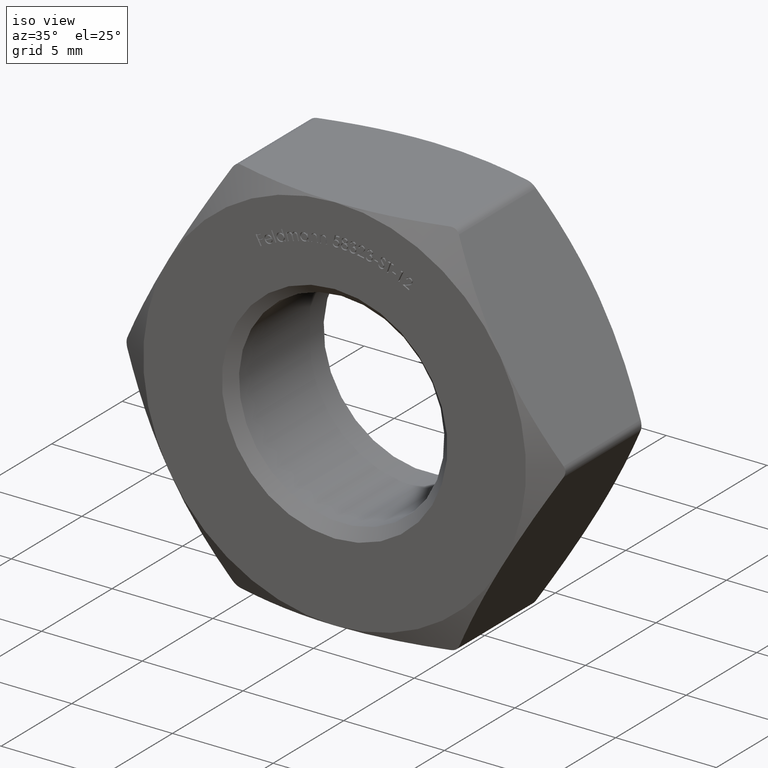
[diagram: clean part render]
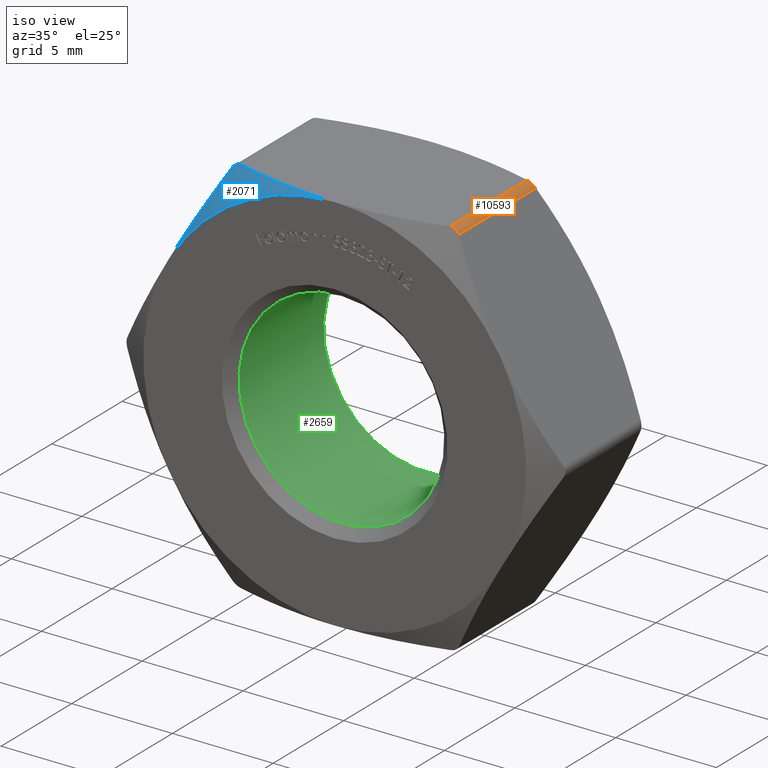
[diagram: same view with three faces highlighted in distinct colors, each labeled with its STEP entity id]
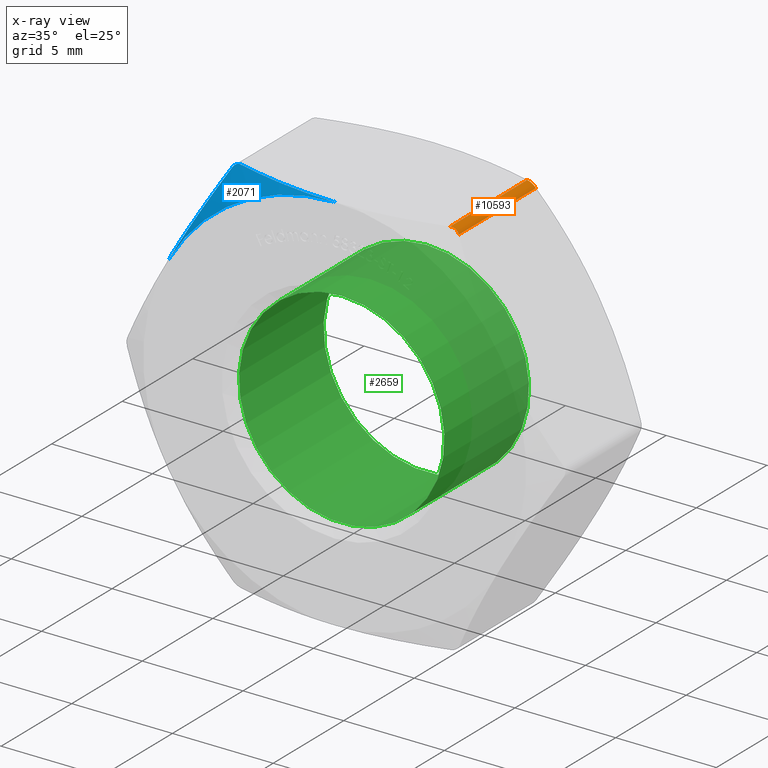
[diagram: x-ray of the same camera — body ghosted, the three highlighted faces saturated]
A machine part, iso view with three faces highlighted in distinct colors.
The next image is the same camera in x-ray (body ghosted, the three faces saturated) — at least one of them is partly hidden behind the body in this view.
Their STEP definitions:

[orange] entity #10593 — the highlighted cylindrical surface (edge-blend (fillet) strip) has radius 0.5 mm, axis along (0, -1, 0).
#35 = DIRECTION ( 'NONE',  ( -0.000000000000000000, 1.000000000000000000, -0.000000000000000000 ) ) ;
#202 = CARTESIAN_POINT ( 'NONE',  ( 5.196152422706628471, -2.733161112797773296, 9.500000000000001776 ) ) ;
#394 = CARTESIAN_POINT ( 'NONE',  ( 5.369432392635906659, 2.696196110277425451, 9.477215452927385542 ) ) ;
#900 = CARTESIAN_POINT ( 'NONE',  ( 5.370289189535662366, -2.696108957237654202, 9.476903473388148313 ) ) ;
#1115 = CARTESIAN_POINT ( 'NONE',  ( 5.282050604140605898, -2.709362655883581272, 9.500000000000003553 ) ) ;
#1377 = EDGE_CURVE ( 'NONE', #6159, #10678, #9933, .T. ) ;
#1577 = EDGE_CURVE ( 'NONE', #10678, #12468, #2324, .T. ) ;
#1732 = CARTESIAN_POINT ( 'NONE',  ( 5.586216033881776788, 2.709362655883534643, 9.324390007260857871 ) ) ;
#1938 = CARTESIAN_POINT ( 'NONE',  ( 5.629165124598848990, 2.733161112797772407, 9.250000000000001776 ) ) ;
#2324 = LINE ( 'NONE', #4710, #9366 ) ;
#2556 = ORIENTED_EDGE ( 'NONE', *, *, #1577, .F. ) ;
#3938 = CARTESIAN_POINT ( 'NONE',  ( 5.522094562399021633, 2.696108957237604020, 9.389258600501161567 ) ) ;
#4710 = CARTESIAN_POINT ( 'NONE',  ( 5.196152422706629359, 3.500000000000000000, 9.500000000000001776 ) ) ;
#5069 = EDGE_CURVE ( 'NONE', #13404, #6159, #5956, .T. ) ;
#5725 = DIRECTION ( 'NONE',  ( 0.000000000000000000, 0.000000000000000000, -1.000000000000000000 ) ) ;
#5753 = CARTESIAN_POINT ( 'NONE',  ( 5.629165124598350722, -2.733161112797497072, 9.250000000000863309 ) ) ;
#5828 = EDGE_LOOP ( 'NONE', ( #12249, #2556, #6005, #10338 ) ) ;
#5956 = LINE ( 'NONE', #13663, #8933 ) ;
#6005 = ORIENTED_EDGE ( 'NONE', *, *, #1377, .F. ) ;
#6159 = VERTEX_POINT ( 'NONE', #8187 ) ;
#6784 = DIRECTION ( 'NONE',  ( 0.000000000000000000, -1.000000000000000000, 0.000000000000000000 ) ) ;
#8154 = CARTESIAN_POINT ( 'NONE',  ( 5.522793143055056753, -2.696196110277375269, 9.388672582389874677 ) ) ;
#8187 = CARTESIAN_POINT ( 'NONE',  ( 5.629165124598350722, -2.733161112797497072, 9.250000000000863309 ) ) ;
#8933 = VECTOR ( 'NONE', #8947, 1000.000000000000000 ) ;
#8947 = DIRECTION ( 'NONE',  ( 0.000000000000000000, -1.000000000000000000, 0.000000000000000000 ) ) ;
#9366 = VECTOR ( 'NONE', #35, 1000.000000000000000 ) ;
#9511 = B_SPLINE_CURVE_WITH_KNOTS ( 'NONE', 3,
 ( #14808, #11041, #394, #3938, #1732, #10065 ),
 .UNSPECIFIED., .F., .F.,
 ( 4, 2, 4 ),
 ( 8.673617379884035472E-19, 0.0002637781458274811070, 0.0005275562916549613466 ),
 .UNSPECIFIED. ) ;
#9685 = EDGE_CURVE ( 'NONE', #12468, #13404, #9511, .T. ) ;
#9933 = B_SPLINE_CURVE_WITH_KNOTS ( 'NONE', 3,
 ( #5753, #13926, #8154, #900, #1115, #12911 ),
 .UNSPECIFIED., .F., .F.,
 ( 4, 2, 4 ),
 ( 9.650992615314286706E-16, 0.0002637781458279599991, 0.0005275562916549548413 ),
 .UNSPECIFIED. ) ;
#10065 = CARTESIAN_POINT ( 'NONE',  ( 5.629165124598848990, 2.733161112797772407, 9.250000000000001776 ) ) ;
#10338 = ORIENTED_EDGE ( 'NONE', *, *, #5069, .F. ) ;
#10593 = ADVANCED_FACE ( 'NONE', ( #15380 ), #14811, .T. ) ;
#10678 = VERTEX_POINT ( 'NONE', #202 ) ;
#11041 = CARTESIAN_POINT ( 'NONE',  ( 5.282019346759056155, 2.709371315874232078, 9.500000000000000000 ) ) ;
#11581 = CARTESIAN_POINT ( 'NONE',  ( 5.196152422706629359, 3.500000000000000000, 9.000000000000001776 ) ) ;
#11749 = AXIS2_PLACEMENT_3D ( 'NONE', #11581, #6784, #5725 ) ;
#12249 = ORIENTED_EDGE ( 'NONE', *, *, #9685, .F. ) ;
#12468 = VERTEX_POINT ( 'NONE', #14579 ) ;
#12911 = CARTESIAN_POINT ( 'NONE',  ( 5.196152422706628471, -2.733161112797773296, 9.500000000000001776 ) ) ;
#13404 = VERTEX_POINT ( 'NONE', #1938 ) ;
#13663 = CARTESIAN_POINT ( 'NONE',  ( 5.629165124598848990, 3.500000000000000000, 9.250000000000001776 ) ) ;
#13926 = CARTESIAN_POINT ( 'NONE',  ( 5.586231662572711087, -2.709371315873996267, 9.324362937574106169 ) ) ;
#14579 = CARTESIAN_POINT ( 'NONE',  ( 5.196152422706628471, 2.733161112797773296, 9.500000000000001776 ) ) ;
#14808 = CARTESIAN_POINT ( 'NONE',  ( 5.196152422706628471, 2.733161112797773296, 9.500000000000001776 ) ) ;
#14811 = CYLINDRICAL_SURFACE ( 'NONE', #11749, 0.5000000000000004441 ) ;
#15380 = FACE_OUTER_BOUND ( 'NONE', #5828, .T. ) ;

[blue] entity #2071 — the highlighted conical surface has half-angle 60 deg.
#48 = EDGE_CURVE ( 'NONE', #10922, #6748, #7644, .T. ) ;
#284 = FACE_OUTER_BOUND ( 'NONE', #8165, .T. ) ;
#586 = EDGE_CURVE ( 'NONE', #6748, #15026, #1231, .T. ) ;
#1231 = CIRCLE ( 'NONE', #7705, 9.500000000000001776 ) ;
#1423 = DIRECTION ( 'NONE',  ( 0.000000000000000000, 0.000000000000000000, 1.000000000000000000 ) ) ;
#2071 = ADVANCED_FACE ( 'NONE', ( #284 ), #3949, .T. ) ;
#2133 = CARTESIAN_POINT ( 'NONE',  ( -4.348666152671948559, -2.967960792442867923, 9.500000000000001776 ) ) ;
#2533 = VERTEX_POINT ( 'NONE', #11505 ) ;
#2710 = CARTESIAN_POINT ( 'NONE',  ( -7.347778050468204647, -3.412405536657729055, 6.273275093849667527 ) ) ;
#3325 = CARTESIAN_POINT ( 'NONE',  ( -5.196152422707281282, -2.733161112797592551, 9.500000000000001776 ) ) ;
#3915 = CARTESIAN_POINT ( 'NONE',  ( -5.196152422707281282, -2.733161112797592551, 9.500000000000001776 ) ) ;
#3929 = B_SPLINE_CURVE_WITH_KNOTS ( 'NONE', 3,
 ( #14801, #11145, #10006, #2710, #4308, #7829, #5387, #13701 ),
 .UNSPECIFIED., .F., .F.,
 ( 4, 2, 2, 4 ),
 ( 0.005549985383765654139, 0.006857997360578058955, 0.008166009337390464640, 0.01078203329101527427 ),
 .UNSPECIFIED. ) ;
#3949 = CONICAL_SURFACE ( 'NONE', #5541, 9.500000000000001776, 1.047197551196604071 ) ;
#3966 = CARTESIAN_POINT ( 'NONE',  ( -5.369432392636323215, -2.696196110277392588, 9.477215452927211459 ) ) ;
#4308 = CARTESIAN_POINT ( 'NONE',  ( -7.130196065325849375, -3.360768812073043232, 6.650138146927925931 ) ) ;
#4663 = EDGE_CURVE ( 'NONE', #10922, #2533, #13479, .T. ) ;
#5092 = CARTESIAN_POINT ( 'NONE',  ( -5.586216033881830079, -2.709362655883565285, 9.324390007260763724 ) ) ;
#5387 = CARTESIAN_POINT ( 'NONE',  ( -6.053412761787224206, -2.968240341392042403, 8.515181537398682110 ) ) ;
#5541 = AXIS2_PLACEMENT_3D ( 'NONE', #6411, #7559, #13601 ) ;
#5591 = CARTESIAN_POINT ( 'NONE',  ( -1.748548221912492373, -3.428786257910811486, 9.500000000000000000 ) ) ;
#5645 = CARTESIAN_POINT ( 'NONE',  ( 3.931690912932538010E-17, -3.500000000000000000, 9.500000000000001776 ) ) ;
#5969 = CARTESIAN_POINT ( 'NONE',  ( 3.931690912932538010E-17, -3.500000000000000000, 1.848398285660946747E-16 ) ) ;
#6411 = CARTESIAN_POINT ( 'NONE',  ( 3.931690912932538010E-17, -3.500000000000000000, 0.000000000000000000 ) ) ;
#6748 = VERTEX_POINT ( 'NONE', #7870 ) ;
#7295 = DIRECTION ( 'NONE',  ( -0.000000000000000000, -1.000000000000000000, -0.000000000000000000 ) ) ;
#7559 = DIRECTION ( 'NONE',  ( -1.123340260837868025E-17, 1.000000000000000000, -0.000000000000000000 ) ) ;
#7644 = B_SPLINE_CURVE_WITH_KNOTS ( 'NONE', 3,
 ( #3325, #2133, #15008, #5591, #15108, #5645 ),
 .UNSPECIFIED., .F., .F.,
 ( 4, 2, 4 ),
 ( 0.01008431317107068119, 0.01270932973017897469, 0.01533434628928726819 ),
 .UNSPECIFIED. ) ;
#7705 = AXIS2_PLACEMENT_3D ( 'NONE', #5969, #7295, #1423 ) ;
#7829 = CARTESIAN_POINT ( 'NONE',  ( -6.481161992788940118, -3.161040693212942010, 7.774298136405198179 ) ) ;
#7870 = CARTESIAN_POINT ( 'NONE',  ( 3.931690912932538010E-17, -3.500000000000000000, 9.500000000000001776 ) ) ;
#7878 = ORIENTED_EDGE ( 'NONE', *, *, #4663, .T. ) ;
#8165 = EDGE_LOOP ( 'NONE', ( #14469, #7878, #15081, #13101 ) ) ;
#8692 = CARTESIAN_POINT ( 'NONE',  ( -5.522094562399192164, -2.696108957237635995, 9.389258600500994589 ) ) ;
#9987 = CARTESIAN_POINT ( 'NONE',  ( -5.629165124598848990, -2.733161112797774184, 9.250000000000000000 ) ) ;
#10006 = CARTESIAN_POINT ( 'NONE',  ( -7.785726958241923512, -3.482053147081709099, 5.514725334466293205 ) ) ;
#10814 = EDGE_CURVE ( 'NONE', #15026, #2533, #3929, .T. ) ;
#10922 = VERTEX_POINT ( 'NONE', #11616 ) ;
#11145 = CARTESIAN_POINT ( 'NONE',  ( -8.007001594286082380, -3.500000000000008438, 5.131466422411502748 ) ) ;
#11505 = CARTESIAN_POINT ( 'NONE',  ( -5.629165124598848990, -2.733161112797774184, 9.250000000000000000 ) ) ;
#11616 = CARTESIAN_POINT ( 'NONE',  ( -5.196152422707281282, -2.733161112797592551, 9.500000000000001776 ) ) ;
#13101 = ORIENTED_EDGE ( 'NONE', *, *, #586, .F. ) ;
#13479 = B_SPLINE_CURVE_WITH_KNOTS ( 'NONE', 3,
 ( #3915, #14783, #3966, #8692, #5092, #9987 ),
 .UNSPECIFIED., .F., .F.,
 ( 4, 2, 4 ),
 ( 6.327872022629089242E-16, 0.0002637781458277957424, 0.0005275562916549586361 ),
 .UNSPECIFIED. ) ;
#13601 = DIRECTION ( 'NONE',  ( 1.000000000000000000, 0.000000000000000000, 0.000000000000000000 ) ) ;
#13701 = CARTESIAN_POINT ( 'NONE',  ( -5.629165124598848990, -2.733161112797774184, 9.250000000000000000 ) ) ;
#13904 = CARTESIAN_POINT ( 'NONE',  ( -8.227241335952168555, -3.500000000000000000, 4.750000000000000888 ) ) ;
#14469 = ORIENTED_EDGE ( 'NONE', *, *, #48, .F. ) ;
#14783 = CARTESIAN_POINT ( 'NONE',  ( -5.282019346758962008, -2.709371315874077979, 9.500000000000000000 ) ) ;
#14801 = CARTESIAN_POINT ( 'NONE',  ( -8.227241335952168555, -3.500000000000000000, 4.750000000000000888 ) ) ;
#15008 = CARTESIAN_POINT ( 'NONE',  ( -3.482435840627232881, -3.163065989375615672, 9.500000000000001776 ) ) ;
#15026 = VERTEX_POINT ( 'NONE', #13904 ) ;
#15081 = ORIENTED_EDGE ( 'NONE', *, *, #10814, .F. ) ;
#15108 = CARTESIAN_POINT ( 'NONE',  ( -0.8769579191401497553, -3.500000000000000000, 9.500000000000001776 ) ) ;

[green] entity #2659 — the highlighted cylindrical surface (bore or boss wall) has radius 5.1 mm, axis along (-0, 1, -0).
#43 = DIRECTION ( 'NONE',  ( -0.000000000000000000, -1.000000000000000000, -0.000000000000000000 ) ) ;
#841 = DIRECTION ( 'NONE',  ( 0.000000000000000000, 1.000000000000000000, 0.000000000000000000 ) ) ;
#1066 = CARTESIAN_POINT ( 'NONE',  ( 0.000000000000000000, -3.000000000000003109, 0.000000000000000000 ) ) ;
#1674 = CIRCLE ( 'NONE', #9823, 5.099999999999996980 ) ;
#2521 = CARTESIAN_POINT ( 'NONE',  ( 0.000000000000000000, 2.999999999999996003, 5.099999999999996980 ) ) ;
#2659 = ADVANCED_FACE ( 'NONE', ( #7652, #4711 ), #14209, .F. ) ;
#3908 = EDGE_CURVE ( 'NONE', #13890, #13890, #4319, .T. ) ;
#3997 = CARTESIAN_POINT ( 'NONE',  ( 0.000000000000000000, -3.000000000000003109, 5.099999999999996980 ) ) ;
#4319 = CIRCLE ( 'NONE', #8056, 5.099999999999996980 ) ;
#4657 = CARTESIAN_POINT ( 'NONE',  ( 0.000000000000000000, 3.500000000000000000, 0.000000000000000000 ) ) ;
#4682 = EDGE_LOOP ( 'NONE', ( #13841 ) ) ;
#4711 = FACE_OUTER_BOUND ( 'NONE', #4682, .T. ) ;
#5604 = ORIENTED_EDGE ( 'NONE', *, *, #6728, .T. ) ;
#5986 = DIRECTION ( 'NONE',  ( -0.000000000000000000, 1.000000000000000000, -0.000000000000000000 ) ) ;
#6728 = EDGE_CURVE ( 'NONE', #10159, #10159, #1674, .T. ) ;
#7652 = FACE_OUTER_BOUND ( 'NONE', #8588, .T. ) ;
#8056 = AXIS2_PLACEMENT_3D ( 'NONE', #1066, #43, #10638 ) ;
#8085 = DIRECTION ( 'NONE',  ( 0.000000000000000000, 0.000000000000000000, 1.000000000000000000 ) ) ;
#8198 = DIRECTION ( 'NONE',  ( 0.000000000000000000, 0.000000000000000000, 1.000000000000000000 ) ) ;
#8588 = EDGE_LOOP ( 'NONE', ( #5604 ) ) ;
#9823 = AXIS2_PLACEMENT_3D ( 'NONE', #11448, #841, #8085 ) ;
#10159 = VERTEX_POINT ( 'NONE', #2521 ) ;
#10638 = DIRECTION ( 'NONE',  ( 0.000000000000000000, 0.000000000000000000, 1.000000000000000000 ) ) ;
#10806 = AXIS2_PLACEMENT_3D ( 'NONE', #4657, #5986, #8198 ) ;
#11448 = CARTESIAN_POINT ( 'NONE',  ( 0.000000000000000000, 2.999999999999996003, 0.000000000000000000 ) ) ;
#13841 = ORIENTED_EDGE ( 'NONE', *, *, #3908, .T. ) ;
#13890 = VERTEX_POINT ( 'NONE', #3997 ) ;
#14209 = CYLINDRICAL_SURFACE ( 'NONE', #10806, 5.099999999999996980 ) ;